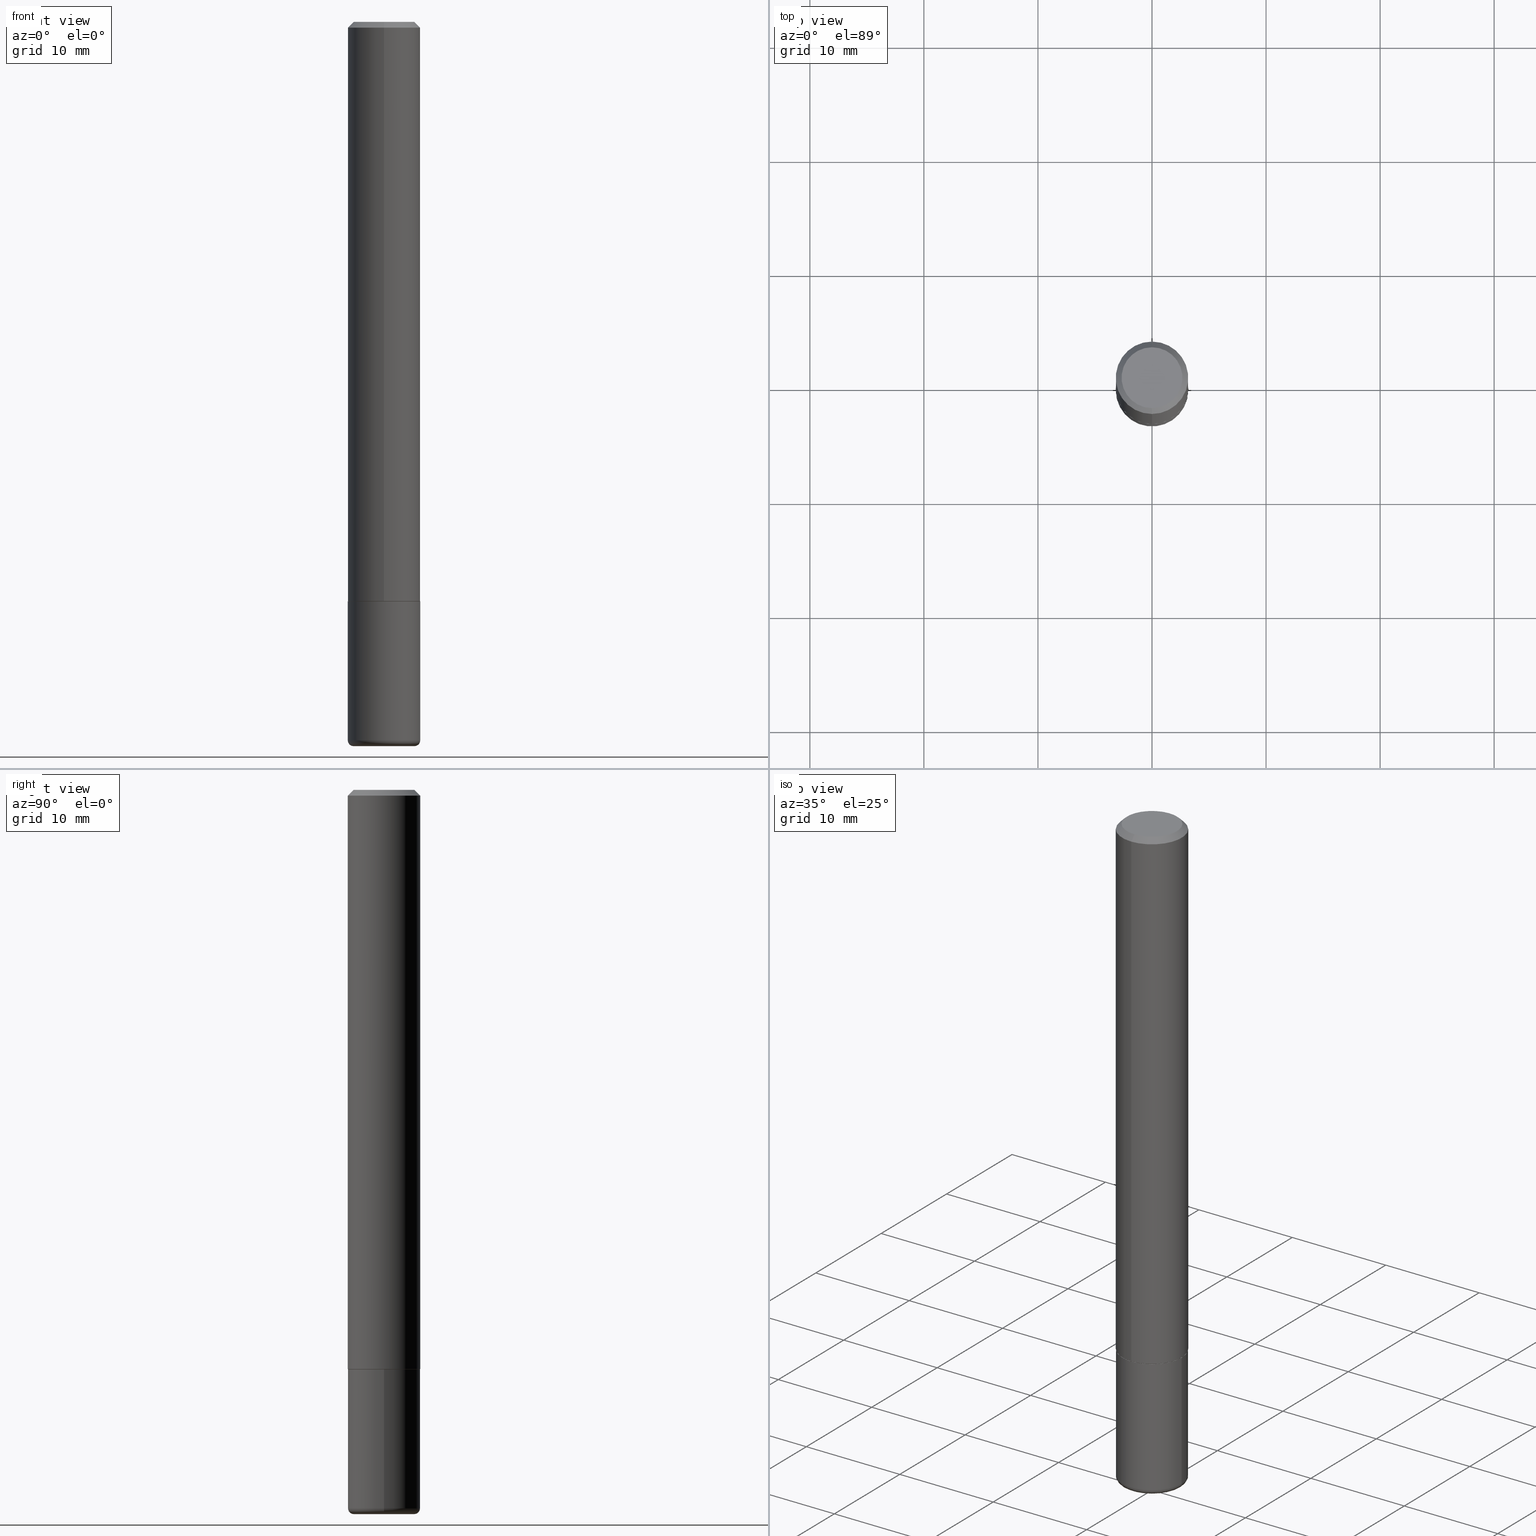
[diagram: canonical four-view strip — front | top / right | iso, engineering-drawing reading convention]
A machine part, canonical four-view strip (front | top / right | iso — engineering-drawing reading convention). The complete STEP part file that produces these views, byte-faithful:
ISO-10303-21;
HEADER;
FILE_DESCRIPTION (( 'STEP AP203' ),
    '1' );
FILE_NAME ('36570.STEP',
    '2024-03-01T16:42:06',
    ( '' ),
    ( '' ),
    'SwSTEP 2.0',
    'SolidWorks 2023',
    '' );
FILE_SCHEMA (( 'CONFIG_CONTROL_DESIGN' ));
ENDSEC;

DATA;
#1 = FACE_OUTER_BOUND ( 'NONE', #395, .T. ) ;
#2 = CARTESIAN_POINT ( 'NONE',  ( 4.867520420613714934E-29, -7.016497429105465647E-15, -2.000000000000000000 ) ) ;
#3 = AXIS2_PLACEMENT_3D ( 'NONE', #68, #321, #290 ) ;
#4 = CIRCLE ( 'NONE', #263, 0.1240000000000000685 ) ;
#5 = ADVANCED_FACE ( 'NONE', ( #211 ), #91, .T. ) ;
#6 = ORIENTED_EDGE ( 'NONE', *, *, #28, .F. ) ;
#7 = LINE ( 'NONE', #265, #300 ) ;
#8 = ORIENTED_EDGE ( 'NONE', *, *, #73, .F. ) ;
#9 = CIRCLE ( 'NONE', #38, 0.1240000000000000685 ) ;
#10 = ORIENTED_EDGE ( 'NONE', *, *, #217, .F. ) ;
#11 = ORIENTED_EDGE ( 'NONE', *, *, #261, .T. ) ;
#12 = CARTESIAN_POINT ( 'NONE',  ( -8.575622497214411495E-16, -0.1250000000000001110, -0.01999999999999963612 ) ) ;
#14 = ORIENTED_EDGE ( 'NONE', *, *, #273, .F. ) ;
#13 = PRODUCT_RELATED_PRODUCT_CATEGORY ( 'detail', '', ( #43 ) ) ;
#15 = CC_DESIGN_APPROVAL ( #136, ( #328 ) ) ;
#16 = CARTESIAN_POINT ( 'NONE',  ( 4.867520420613714934E-29, -7.016497429105465647E-15, -2.000000000000000000 ) ) ;
#17 = DIMENSIONAL_EXPONENTS ( 1.000000000000000000, 0.000000000000000000, 0.000000000000000000, 0.000000000000000000, 0.000000000000000000, 0.000000000000000000, 0.000000000000000000 ) ;
#18 = CARTESIAN_POINT ( 'NONE',  ( 0.1250000000000000278, -7.855833012397075293E-15, -2.000000000000000000 ) ) ;
#19 = CARTESIAN_POINT ( 'NONE',  ( 4.890937612370273194E-29, -6.982962677686291165E-15, -2.000000000000000000 ) ) ;
#20 = DIRECTION ( 'NONE',  ( 5.024295867788404755E-15, 0.7071067811865981989, 0.7071067811864968355 ) ) ;
#21 = CONICAL_SURFACE ( 'NONE', #97, 0.1250000000000000278, 0.7853981633974477239 ) ;
#22 = EDGE_LOOP ( 'NONE', ( #105, #93 ) ) ;
#23 = APPROVAL_DATE_TIME ( #320, #136 ) ;
#24 = VERTEX_POINT ( 'NONE', #27 ) ;
#25 = SECURITY_CLASSIFICATION_LEVEL ( 'unclassified' ) ;
#26 = PERSON_AND_ORGANIZATION ( #386, #278 ) ;
#27 = CARTESIAN_POINT ( 'NONE',  ( 8.030407079339199420E-16, 0.1049999999999997047, -8.915222872200252248E-17 ) ) ;
#28 = EDGE_CURVE ( 'NONE', #24, #61, #220, .T. ) ;
#29 = CARTESIAN_POINT ( 'NONE',  ( -0.1249999999999999861, -7.770695300630876412E-15, -2.480000000000000426 ) ) ;
#30 = DIRECTION ( 'NONE',  ( -2.445468806185136597E-29, 3.491481338843145583E-15, 1.000000000000000000 ) ) ;
#31 = CONICAL_SURFACE ( 'NONE', #59, 0.1240000000000000685, 0.7853981633975165577 ) ;
#32 = VECTOR ( 'NONE', #235, 39.37007874015748143 ) ;
#33 = DIRECTION ( 'NONE',  ( 1.000000000000000000, -6.982962677686261189E-15, 0.000000000000000000 ) ) ;
#34 = ORIENTED_EDGE ( 'NONE', *, *, #371, .T. ) ;
#35 = FACE_OUTER_BOUND ( 'NONE', #199, .T. ) ;
#36 = EDGE_CURVE ( 'NONE', #215, #254, #365, .T. ) ;
#37 = FACE_OUTER_BOUND ( 'NONE', #86, .T. ) ;
#38 = AXIS2_PLACEMENT_3D ( 'NONE', #294, #323, #72 ) ;
#39 = AXIS2_PLACEMENT_3D ( 'NONE', #98, #193, #167 ) ;
#40 = PRODUCT_DEFINITION_SHAPE ( 'NONE', 'NONE',  #328 ) ;
#41 = DIRECTION ( 'NONE',  ( -6.982962677686265922E-15, -1.000000000000000000, 4.406206441393970185E-15 ) ) ;
#42 = VERTEX_POINT ( 'NONE', #385 ) ;
#43 = PRODUCT ( '36570', '36570', '', ( #214 ) ) ;
#44 = VERTEX_POINT ( 'NONE', #344 ) ;
#45 = ORIENTED_EDGE ( 'NONE', *, *, #357, .T. ) ;
#46 = DIRECTION ( 'NONE',  ( -6.982962677686266711E-15, -1.000000000000000000, 3.491481338843145583E-15 ) ) ;
#47 = CARTESIAN_POINT ( 'NONE',  ( 4.867520420613734727E-31, -7.016497429105492666E-17, -0.02000000000000007674 ) ) ;
#48 = CC_DESIGN_DATE_AND_TIME_ASSIGNMENT ( #349, #279, ( #312 ) ) ;
#49 = ORIENTED_EDGE ( 'NONE', *, *, #177, .F. ) ;
#50 = DIRECTION ( 'NONE',  ( -2.445468806185136597E-29, 3.491481338843145583E-15, 1.000000000000000000 ) ) ;
#51 = EDGE_CURVE ( 'NONE', #42, #316, #218, .T. ) ;
#52 = AXIS2_PLACEMENT_3D ( 'NONE', #231, #106, #110 ) ;
#53 = DIRECTION ( 'NONE',  ( 2.433760210306857467E-29, -3.508248714552732824E-15, -1.000000000000000000 ) ) ;
#54 = FACE_OUTER_BOUND ( 'NONE', #22, .T. ) ;
#55 = ADVANCED_FACE ( 'NONE', ( #314 ), #221, .T. ) ;
#56 = CALENDAR_DATE ( 2024, 1, 3 ) ;
#57 = ORIENTED_EDGE ( 'NONE', *, *, #248, .F. ) ;
#58 = CARTESIAN_POINT ( 'NONE',  ( 8.881784197001510675E-16, 0.1249999999999932554, -1.999000000000000554 ) ) ;
#59 = AXIS2_PLACEMENT_3D ( 'NONE', #132, #180, #169 ) ;
#60 = CIRCLE ( 'NONE', #109, 0.1250000000000000278 ) ;
#61 = VERTEX_POINT ( 'NONE', #95 ) ;
#62 = DIRECTION ( 'NONE',  ( -2.433760210306857467E-29, 3.508248714552732429E-15, 1.000000000000000000 ) ) ;
#63 = EDGE_CURVE ( 'NONE', #64, #24, #262, .T. ) ;
#64 = VERTEX_POINT ( 'NONE', #382 ) ;
#65 = APPROVAL ( #140, 'UNSPECIFIED' ) ;
#66 = DIRECTION ( 'NONE',  ( -2.445468806185136597E-29, 3.491481338843145583E-15, 1.000000000000000000 ) ) ;
#67 = DIRECTION ( 'NONE',  ( -2.433760210306857467E-29, 3.508248714552732429E-15, 1.000000000000000000 ) ) ;
#68 = CARTESIAN_POINT ( 'NONE',  ( 4.890937612370273194E-29, -6.982962677686291165E-15, -2.000000000000000000 ) ) ;
#69 = AXIS2_PLACEMENT_3D ( 'NONE', #259, #292, #389 ) ;
#70 = VECTOR ( 'NONE', #138, 39.37007874015748143 ) ;
#71 = AXIS2_PLACEMENT_3D ( 'NONE', #19, #178, #103 ) ;
#72 = DIRECTION ( 'NONE',  ( -6.982962677686265922E-15, -1.000000000000000000, 4.406206441393970185E-15 ) ) ;
#73 = EDGE_CURVE ( 'NONE', #253, #301, #87, .T. ) ;
#74 = CARTESIAN_POINT ( 'NONE',  ( -8.658873720330487110E-16, -0.1240000000000070768, -1.999999999999999334 ) ) ;
#75 = ORIENTED_EDGE ( 'NONE', *, *, #297, .T. ) ;
#76 = EDGE_LOOP ( 'NONE', ( #379, #14 ) ) ;
#77 = CONICAL_SURFACE ( 'NONE', #311, 0.1240000000000000685, 0.7853981633975165577 ) ;
#78 = PLANE ( 'NONE',  #319 ) ;
#79 = ADVANCED_FACE ( 'NONE', ( #289 ), #418, .F. ) ;
#80 = DIRECTION ( 'NONE',  ( 1.000000000000000000, -6.982962677686261189E-15, 0.000000000000000000 ) ) ;
#81 = AXIS2_PLACEMENT_3D ( 'NONE', #404, #276, #145 ) ;
#82 = DIRECTION ( 'NONE',  ( 6.982962677686265922E-15, 1.000000000000000000, -3.517254291842738179E-15 ) ) ;
#83 =( CONVERSION_BASED_UNIT ( 'INCH', #126 ) LENGTH_UNIT ( ) NAMED_UNIT ( #17 ) );
#84 = APPROVAL_DATE_TIME ( #129, #315 ) ;
#85 = COORDINATED_UNIVERSAL_TIME_OFFSET ( 5, 0, .BEHIND. ) ;
#86 = EDGE_LOOP ( 'NONE', ( #202, #135, #318, #398 ) ) ;
#87 = CIRCLE ( 'NONE', #256, 0.1050000000000000377 ) ;
#88 =( LENGTH_UNIT ( ) NAMED_UNIT ( * ) SI_UNIT ( $, .METRE. ) );
#89 = PRODUCT_DEFINITION_FORMATION_WITH_SPECIFIED_SOURCE ( 'ANY', '', #43, .NOT_KNOWN. ) ;
#90 = APPROVAL_PERSON_ORGANIZATION ( #130, #136, #350 ) ;
#91 = PLANE ( 'NONE',  #115 ) ;
#92 = PERSON_AND_ORGANIZATION ( #386, #278 ) ;
#93 = ORIENTED_EDGE ( 'NONE', *, *, #63, .T. ) ;
#94 =( NAMED_UNIT ( * ) SI_UNIT ( $, .STERADIAN. ) SOLID_ANGLE_UNIT ( ) );
#95 = CARTESIAN_POINT ( 'NONE',  ( 8.728703347107839305E-16, 0.1249999999999999584, -0.02000000000000051736 ) ) ;
#96 = UNCERTAINTY_MEASURE_WITH_UNIT (LENGTH_MEASURE( 1.000000000000000082E-05 ), #83, 'distance_accuracy_value', 'NONE');
#97 = AXIS2_PLACEMENT_3D ( 'NONE', #296, #205, #82 ) ;
#98 = CARTESIAN_POINT ( 'NONE',  ( -0.1050000000000000377, -7.912803847782896575E-15, -2.480000000000000426 ) ) ;
#99 = ADVANCED_FACE ( 'NONE', ( #1 ), #31, .T. ) ;
#100 = PERSON_AND_ORGANIZATION ( #386, #278 ) ;
#101 = CIRCLE ( 'NONE', #117, 0.1250000000000000278 ) ;
#102 = ORIENTED_EDGE ( 'NONE', *, *, #209, .T. ) ;
#103 = DIRECTION ( 'NONE',  ( 1.000000000000000000, -6.982962677686269077E-15, 0.000000000000000000 ) ) ;
#105 = ORIENTED_EDGE ( 'NONE', *, *, #338, .T. ) ;
#104 = CC_DESIGN_PERSON_AND_ORGANIZATION_ASSIGNMENT ( #26, #219, ( #43 ) ) ;
#106 = DIRECTION ( 'NONE',  ( -2.433760210306857467E-29, 3.508248714552732824E-15, 1.000000000000000000 ) ) ;
#107 = ADVANCED_FACE ( 'NONE', ( #361 ), #77, .T. ) ;
#108 = ORIENTED_EDGE ( 'NONE', *, *, #305, .T. ) ;
#109 = AXIS2_PLACEMENT_3D ( 'NONE', #352, #157, #184 ) ;
#110 = DIRECTION ( 'NONE',  ( -6.982962677686266711E-15, -1.000000000000000000, 3.508248714552733218E-15 ) ) ;
#111 = VERTEX_POINT ( 'NONE', #74 ) ;
#112 = DIRECTION ( 'NONE',  ( -6.982962677686265922E-15, -1.000000000000000000, 4.406206441393970185E-15 ) ) ;
#113 = ADVANCED_FACE ( 'NONE', ( #37 ), #225, .T. ) ;
#114 = CARTESIAN_POINT ( 'NONE',  ( 6.064762639339139522E-29, -8.658873720331001644E-15, -2.480000000000000426 ) ) ;
#115 = AXIS2_PLACEMENT_3D ( 'NONE', #281, #159, #244 ) ;
#116 = ADVANCED_BREP_SHAPE_REPRESENTATION ( '36570', ( #226, #360, #222 ), #196 ) ;
#117 = AXIS2_PLACEMENT_3D ( 'NONE', #277, #190, #33 ) ;
#118 = DIRECTION ( 'NONE',  ( -2.433760210306857467E-29, 3.508248714552732824E-15, 1.000000000000000000 ) ) ;
#119 = CALENDAR_DATE ( 2024, 1, 3 ) ;
#120 = PLANE ( 'NONE',  #150 ) ;
#121 = EDGE_LOOP ( 'NONE', ( #191, #102, #402, #264 ) ) ;
#122 = DIRECTION ( 'NONE',  ( -6.982962677686265922E-15, -1.000000000000000000, 3.517254291842738179E-15 ) ) ;
#123 = DIRECTION ( 'NONE',  ( 1.000000000000000000, -6.982962677686266711E-15, 4.883557194083112901E-29 ) ) ;
#124 = ADVANCED_FACE ( 'NONE', ( #358 ), #189, .T. ) ;
#125 = CLOSED_SHELL ( 'NONE', ( #99, #198, #291, #194, #113, #107, #378, #284 ) ) ;
#126 = LENGTH_MEASURE_WITH_UNIT ( LENGTH_MEASURE( 0.02539999999999999897 ), #88 );
#127 = LOCAL_TIME ( 11, 42, 6.000000000000000000, #376 ) ;
#128 = DIRECTION ( 'NONE',  ( -2.433760210306857467E-29, 3.508248714552732824E-15, 1.000000000000000000 ) ) ;
#129 = DATE_AND_TIME ( #56, #381 ) ;
#130 = PERSON_AND_ORGANIZATION ( #386, #278 ) ;
#131 = DIRECTION ( 'NONE',  ( 1.000000000000000000, -6.982962677686269077E-15, 0.000000000000000000 ) ) ;
#132 = CARTESIAN_POINT ( 'NONE',  ( 4.867520420613714934E-29, -7.016497429105465647E-15, -2.000000000000000000 ) ) ;
#133 = ADVANCED_FACE ( 'NONE', ( #195 ), #229, .T. ) ;
#134 = ORIENTED_EDGE ( 'NONE', *, *, #73, .T. ) ;
#135 = ORIENTED_EDGE ( 'NONE', *, *, #217, .T. ) ;
#136 = APPROVAL ( #216, 'UNSPECIFIED' ) ;
#137 = ORIENTED_EDGE ( 'NONE', *, *, #324, .F. ) ;
#138 = DIRECTION ( 'NONE',  ( -2.445468806185136877E-29, 3.491481338843145188E-15, 1.000000000000000000 ) ) ;
#139 = ORIENTED_EDGE ( 'NONE', *, *, #305, .F. ) ;
#140 = APPROVAL_STATUS ( 'not_yet_approved' ) ;
#141 = CARTESIAN_POINT ( 'NONE',  ( 6.113672015462842613E-29, -8.728703347107864943E-15, -2.500000000000000000 ) ) ;
#142 = AXIS2_PLACEMENT_3D ( 'NONE', #245, #128, #250 ) ;
#143 = EDGE_LOOP ( 'NONE', ( #137, #8 ) ) ;
#144 = CIRCLE ( 'NONE', #415, 0.1250000000000002776 ) ;
#145 = DIRECTION ( 'NONE',  ( 1.000000000000000000, -6.982962677686267499E-15, 4.876176775795935793E-29 ) ) ;
#146 = EDGE_CURVE ( 'NONE', #111, #44, #9, .T. ) ;
#147 = CYLINDRICAL_SURFACE ( 'NONE', #52, 0.1250000000000001388 ) ;
#148 = PERSON_AND_ORGANIZATION ( #386, #278 ) ;
#149 = DATE_AND_TIME ( #119, #330 ) ;
#150 = AXIS2_PLACEMENT_3D ( 'NONE', #413, #62, #210 ) ;
#151 = ORIENTED_EDGE ( 'NONE', *, *, #261, .F. ) ;
#152 = DIRECTION ( 'NONE',  ( 1.000000000000000000, 0.000000000000000000, 0.000000000000000000 ) ) ;
#153 = APPLICATION_PROTOCOL_DEFINITION ( 'international standard', 'config_control_design', 1994, #355 ) ;
#154 = CARTESIAN_POINT ( 'NONE',  ( 4.890937612370273194E-29, -6.982962677686291165E-15, -2.000000000000000000 ) ) ;
#155 = CALENDAR_DATE ( 2024, 1, 3 ) ;
#156 = AXIS2_PLACEMENT_3D ( 'NONE', #154, #286, #131 ) ;
#157 = DIRECTION ( 'NONE',  ( -2.433760210306857467E-29, 3.508248714552732824E-15, 1.000000000000000000 ) ) ;
#158 = VECTOR ( 'NONE', #243, 39.37007874015748143 ) ;
#159 = DIRECTION ( 'NONE',  ( 2.438088387897960049E-29, -3.491481338843145188E-15, -1.000000000000000000 ) ) ;
#160 = PERSON_AND_ORGANIZATION_ROLE ( 'creator' ) ;
#161 = ORIENTED_EDGE ( 'NONE', *, *, #403, .F. ) ;
#162 = DIRECTION ( 'NONE',  ( -2.433760210306857467E-29, 3.508248714552732824E-15, 1.000000000000000000 ) ) ;
#163 = AXIS2_PLACEMENT_3D ( 'NONE', #223, #162, #356 ) ;
#164 = AXIS2_PLACEMENT_3D ( 'NONE', #114, #207, #80 ) ;
#165 = CC_DESIGN_SECURITY_CLASSIFICATION ( #312, ( #89 ) ) ;
#166 = COORDINATED_UNIVERSAL_TIME_OFFSET ( 5, 0, .BEHIND. ) ;
#167 = DIRECTION ( 'NONE',  ( -1.000000000000000000, 7.105427357601014480E-15, 0.000000000000000000 ) ) ;
#168 = ORIENTED_EDGE ( 'NONE', *, *, #403, .T. ) ;
#169 = DIRECTION ( 'NONE',  ( -6.982962677686265922E-15, -1.000000000000000000, 4.406206441393970185E-15 ) ) ;
#170 = EDGE_LOOP ( 'NONE', ( #283, #260, #232, #139 ) ) ;
#171 = CIRCLE ( 'NONE', #39, 0.01999999999999988939 ) ;
#172 = AXIS2_PLACEMENT_3D ( 'NONE', #47, #53, #175 ) ;
#173 = ORIENTED_EDGE ( 'NONE', *, *, #230, .F. ) ;
#174 = DIRECTION ( 'NONE',  ( 1.000000000000000000, -6.982962677686274599E-15, 0.000000000000000000 ) ) ;
#175 = DIRECTION ( 'NONE',  ( 6.982962677686265922E-15, 1.000000000000000000, -3.517254291842738179E-15 ) ) ;
#176 = CARTESIAN_POINT ( 'NONE',  ( -6.795396466567667121E-45, 9.795517577184144836E-31, 2.792138863060333773E-16 ) ) ;
#177 = EDGE_CURVE ( 'NONE', #253, #341, #171, .T. ) ;
#178 = DIRECTION ( 'NONE',  ( -2.445468806185136597E-29, 3.491481338843145583E-15, 1.000000000000000000 ) ) ;
#179 = CARTESIAN_POINT ( 'NONE',  ( -0.1250000000000000278, -6.932739779308521567E-15, -2.000000000000000000 ) ) ;
#180 = DIRECTION ( 'NONE',  ( -2.433760210306857467E-29, 3.508248714552732824E-15, 1.000000000000000000 ) ) ;
#181 = AXIS2_PLACEMENT_3D ( 'NONE', #414, #30, #123 ) ;
#182 = APPLICATION_PROTOCOL_DEFINITION ( 'international standard', 'config_control_design', 1994, #384 ) ;
#183 = CARTESIAN_POINT ( 'NONE',  ( -8.728703347107843249E-16, -0.1250000000000001388, 4.385310893190921453E-16 ) ) ;
#184 = DIRECTION ( 'NONE',  ( -6.982962677686265922E-15, -1.000000000000000000, 3.517254291842738179E-15 ) ) ;
#185 = ORIENTED_EDGE ( 'NONE', *, *, #230, .T. ) ;
#186 = APPROVAL_ROLE ( '' ) ;
#187 = DIRECTION ( 'NONE',  ( 1.000000000000000000, -6.982962677686274599E-15, 0.000000000000000000 ) ) ;
#188 = EDGE_CURVE ( 'NONE', #204, #254, #7, .T. ) ;
#189 = TOROIDAL_SURFACE ( 'NONE', #69, 0.1050000000000000377, 0.01999999999999988939 ) ;
#190 = DIRECTION ( 'NONE',  ( -2.445468806185136597E-29, 3.491481338843145583E-15, 1.000000000000000000 ) ) ;
#191 = ORIENTED_EDGE ( 'NONE', *, *, #409, .T. ) ;
#192 = DATE_AND_TIME ( #295, #201 ) ;
#193 = DIRECTION ( 'NONE',  ( 7.105427357601001859E-15, 1.000000000000000000, -3.491481338843145583E-15 ) ) ;
#194 = ADVANCED_FACE ( 'NONE', ( #35 ), #21, .T. ) ;
#195 = FACE_OUTER_BOUND ( 'NONE', #327, .T. ) ;
#196 =( GEOMETRIC_REPRESENTATION_CONTEXT ( 3 ) GLOBAL_UNCERTAINTY_ASSIGNED_CONTEXT ( ( #96 ) ) GLOBAL_UNIT_ASSIGNED_CONTEXT ( ( #83, #285, #94 ) ) REPRESENTATION_CONTEXT ( 'NONE', 'WORKASPACE' ) );
#197 = DIRECTION ( 'NONE',  ( -2.445468806185136597E-29, 3.491481338843145583E-15, 1.000000000000000000 ) ) ;
#198 = ADVANCED_FACE ( 'NONE', ( #302 ), #147, .T. ) ;
#199 = EDGE_LOOP ( 'NONE', ( #57, #267, #351, #333 ) ) ;
#200 = DIRECTION ( 'NONE',  ( -2.433760210306857467E-29, 3.508248714552732824E-15, 1.000000000000000000 ) ) ;
#201 = LOCAL_TIME ( 11, 42, 6.000000000000000000, #166 ) ;
#202 = ORIENTED_EDGE ( 'NONE', *, *, #357, .F. ) ;
#203 = DIRECTION ( 'NONE',  ( -2.433760210306857467E-29, 3.508248714552732824E-15, 1.000000000000000000 ) ) ;
#204 = VERTEX_POINT ( 'NONE', #307 ) ;
#205 = DIRECTION ( 'NONE',  ( 2.433760210306857467E-29, -3.508248714552732824E-15, -1.000000000000000000 ) ) ;
#206 = CARTESIAN_POINT ( 'NONE',  ( 7.332110811570558550E-16, 0.1049999999999997047, -2.287591718750192234E-16 ) ) ;
#207 = DIRECTION ( 'NONE',  ( -2.445468806185136597E-29, 3.491481338843145583E-15, 1.000000000000000000 ) ) ;
#208 = ORIENTED_EDGE ( 'NONE', *, *, #248, .T. ) ;
#209 = EDGE_CURVE ( 'NONE', #341, #215, #239, .T. ) ;
#210 = DIRECTION ( 'NONE',  ( -6.982962677686265922E-15, -1.000000000000000000, 3.508248714552732429E-15 ) ) ;
#211 = FACE_OUTER_BOUND ( 'NONE', #143, .T. ) ;
#212 = PERSON_AND_ORGANIZATION ( #386, #278 ) ;
#213 = AXIS2_PLACEMENT_3D ( 'NONE', #280, #282, #122 ) ;
#214 = MECHANICAL_CONTEXT ( 'NONE', #384, 'mechanical' ) ;
#215 = VERTEX_POINT ( 'NONE', #179 ) ;
#216 = APPROVAL_STATUS ( 'not_yet_approved' ) ;
#217 = EDGE_CURVE ( 'NONE', #370, #42, #144, .T. ) ;
#218 = LINE ( 'NONE', #183, #406 ) ;
#219 = PERSON_AND_ORGANIZATION_ROLE ( 'design_owner' ) ;
#220 = LINE ( 'NONE', #310, #392 ) ;
#221 = TOROIDAL_SURFACE ( 'NONE', #181, 0.1050000000000000377, 0.01999999999999988939 ) ;
#222 = AXIS2_PLACEMENT_3D ( 'NONE', #309, #249, #152 ) ;
#223 = CARTESIAN_POINT ( 'NONE',  ( 0.000000000000000000, 0.000000000000000000, 0.000000000000000000 ) ) ;
#224 = ADVANCED_FACE ( 'NONE', ( #275 ), #366, .T. ) ;
#225 = CYLINDRICAL_SURFACE ( 'NONE', #163, 0.1250000000000001388 ) ;
#226 = MANIFOLD_SOLID_BREP ( 'Body-Move/Copy2[1]', #336 ) ;
#227 = DIRECTION ( 'NONE',  ( -2.433760210306857467E-29, 3.508248714552732824E-15, 1.000000000000000000 ) ) ;
#228 = CIRCLE ( 'NONE', #246, 0.01999999999999988939 ) ;
#229 = CYLINDRICAL_SURFACE ( 'NONE', #401, 0.1250000000000000278 ) ;
#230 = EDGE_CURVE ( 'NONE', #42, #370, #293, .T. ) ;
#231 = CARTESIAN_POINT ( 'NONE',  ( 0.000000000000000000, 0.000000000000000000, 0.000000000000000000 ) ) ;
#232 = ORIENTED_EDGE ( 'NONE', *, *, #409, .F. ) ;
#233 = CIRCLE ( 'NONE', #287, 0.1050000000000000377 ) ;
#234 = EDGE_LOOP ( 'NONE', ( #49, #134, #108, #151 ) ) ;
#235 = DIRECTION ( 'NONE',  ( -4.851104656540961119E-15, -0.7071067811865495711, -0.7071067811865454633 ) ) ;
#236 = CC_DESIGN_PERSON_AND_ORGANIZATION_ASSIGNMENT ( #148, #374, ( #89 ) ) ;
#237 = EDGE_LOOP ( 'NONE', ( #185, #45, #161, #266 ) ) ;
#238 = CARTESIAN_POINT ( 'NONE',  ( 4.865086660403408100E-29, -7.012989180390911878E-15, -1.998999999999999888 ) ) ;
#239 = LINE ( 'NONE', #369, #70 ) ;
#240 = APPROVAL_PERSON_ORGANIZATION ( #100, #65, #269 ) ;
#241 = DESIGN_CONTEXT ( 'detailed design', #355, 'design' ) ;
#242 = APPROVAL_DATE_TIME ( #149, #65 ) ;
#243 = DIRECTION ( 'NONE',  ( -4.937700262164884886E-15, -0.7071067811865933139, 0.7071067811865017205 ) ) ;
#244 = DIRECTION ( 'NONE',  ( -1.000000000000000000, 6.982962677686265922E-15, -4.876176775795935793E-29 ) ) ;
#245 = CARTESIAN_POINT ( 'NONE',  ( -6.795396466567667121E-45, 9.795517577184144836E-31, 2.792138863060333773E-16 ) ) ;
#246 = AXIS2_PLACEMENT_3D ( 'NONE', #304, #46, #174 ) ;
#248 = EDGE_CURVE ( 'NONE', #64, #316, #334, .T. ) ;
#247 = PERSON_AND_ORGANIZATION_ROLE ( 'classification_officer' ) ;
#249 = DIRECTION ( 'NONE',  ( 0.000000000000000000, 0.000000000000000000, 1.000000000000000000 ) ) ;
#250 = DIRECTION ( 'NONE',  ( -6.982962677686265922E-15, -1.000000000000000000, 3.508248714552732035E-15 ) ) ;
#251 = SHAPE_DEFINITION_REPRESENTATION ( #40, #116 ) ;
#252 = LINE ( 'NONE', #342, #354 ) ;
#253 = VERTEX_POINT ( 'NONE', #332 ) ;
#254 = VERTEX_POINT ( 'NONE', #18 ) ;
#255 = CC_DESIGN_PERSON_AND_ORGANIZATION_ASSIGNMENT ( #325, #160, ( #328 ) ) ;
#256 = AXIS2_PLACEMENT_3D ( 'NONE', #353, #66, #187 ) ;
#257 = DATE_TIME_ROLE ( 'creation_date' ) ;
#258 = CC_DESIGN_APPROVAL ( #65, ( #89 ) ) ;
#259 = CARTESIAN_POINT ( 'NONE',  ( 6.064762639339139522E-29, -8.658873720331001644E-15, -2.480000000000000426 ) ) ;
#260 = ORIENTED_EDGE ( 'NONE', *, *, #177, .T. ) ;
#261 = EDGE_CURVE ( 'NONE', #341, #204, #393, .T. ) ;
#262 = CIRCLE ( 'NONE', #142, 0.1049999999999997047 ) ;
#263 = AXIS2_PLACEMENT_3D ( 'NONE', #16, #200, #112 ) ;
#264 = ORIENTED_EDGE ( 'NONE', *, *, #188, .F. ) ;
#265 = CARTESIAN_POINT ( 'NONE',  ( 0.1250000000000000278, -8.728703347107836346E-16, 6.095220969744921142E-30 ) ) ;
#266 = ORIENTED_EDGE ( 'NONE', *, *, #51, .F. ) ;
#267 = ORIENTED_EDGE ( 'NONE', *, *, #338, .F. ) ;
#268 = CC_DESIGN_DATE_AND_TIME_ASSIGNMENT ( #192, #257, ( #328 ) ) ;
#269 = APPROVAL_ROLE ( '' ) ;
#270 = DIRECTION ( 'NONE',  ( 1.000000000000000000, -6.982962677686274599E-15, 0.000000000000000000 ) ) ;
#271 = LOCAL_TIME ( 11, 42, 6.000000000000000000, #85 ) ;
#272 = AXIS2_PLACEMENT_3D ( 'NONE', #176, #118, #408 ) ;
#273 = EDGE_CURVE ( 'NONE', #44, #111, #4, .T. ) ;
#274 = ORIENTED_EDGE ( 'NONE', *, *, #36, .T. ) ;
#275 = FACE_OUTER_BOUND ( 'NONE', #121, .T. ) ;
#276 = DIRECTION ( 'NONE',  ( -2.445468806185136597E-29, 3.491481338843145583E-15, 1.000000000000000000 ) ) ;
#277 = CARTESIAN_POINT ( 'NONE',  ( 6.064762639339139522E-29, -8.658873720331001644E-15, -2.480000000000000426 ) ) ;
#278 = ORGANIZATION ( 'UNSPECIFIED', 'UNSPECIFIED', '' ) ;
#279 = DATE_TIME_ROLE ( 'classification_date' ) ;
#280 = CARTESIAN_POINT ( 'NONE',  ( 4.867520420613734727E-31, -7.016497429105492666E-17, -0.02000000000000007674 ) ) ;
#281 = CARTESIAN_POINT ( 'NONE',  ( 6.113672015462842613E-29, -8.728703347107864943E-15, -2.500000000000000000 ) ) ;
#282 = DIRECTION ( 'NONE',  ( -2.433760210306857467E-29, 3.508248714552732824E-15, 1.000000000000000000 ) ) ;
#283 = ORIENTED_EDGE ( 'NONE', *, *, #324, .T. ) ;
#284 = ADVANCED_FACE ( 'NONE', ( #54 ), #78, .F. ) ;
#285 =( NAMED_UNIT ( * ) PLANE_ANGLE_UNIT ( ) SI_UNIT ( $, .RADIAN. ) );
#286 = DIRECTION ( 'NONE',  ( -2.445468806185136597E-29, 3.491481338843145583E-15, 1.000000000000000000 ) ) ;
#287 = AXIS2_PLACEMENT_3D ( 'NONE', #141, #50, #270 ) ;
#288 = APPROVAL_STATUS ( 'not_yet_approved' ) ;
#289 = FACE_OUTER_BOUND ( 'NONE', #387, .T. ) ;
#290 = DIRECTION ( 'NONE',  ( -1.000000000000000000, 6.982962677686265922E-15, -4.876176775795935793E-29 ) ) ;
#291 = ADVANCED_FACE ( 'NONE', ( #396 ), #373, .T. ) ;
#292 = DIRECTION ( 'NONE',  ( -2.445468806185136597E-29, 3.491481338843145583E-15, 1.000000000000000000 ) ) ;
#293 = CIRCLE ( 'NONE', #367, 0.1250000000000002776 ) ;
#294 = CARTESIAN_POINT ( 'NONE',  ( 4.867520420613714934E-29, -7.016497429105465647E-15, -2.000000000000000000 ) ) ;
#295 = CALENDAR_DATE ( 2024, 1, 3 ) ;
#296 = CARTESIAN_POINT ( 'NONE',  ( 4.867520420613734727E-31, -7.016497429105492666E-17, -0.02000000000000007674 ) ) ;
#297 = EDGE_CURVE ( 'NONE', #254, #215, #337, .T. ) ;
#298 = CARTESIAN_POINT ( 'NONE',  ( 0.000000000000000000, 0.000000000000000000, 0.000000000000000000 ) ) ;
#299 = ORIENTED_EDGE ( 'NONE', *, *, #273, .T. ) ;
#300 = VECTOR ( 'NONE', #322, 39.37007874015748143 ) ;
#301 = VERTEX_POINT ( 'NONE', #329 ) ;
#302 = FACE_OUTER_BOUND ( 'NONE', #237, .T. ) ;
#303 = ORIENTED_EDGE ( 'NONE', *, *, #146, .T. ) ;
#304 = CARTESIAN_POINT ( 'NONE',  ( 0.1050000000000000377, -9.392084801488059965E-15, -2.480000000000000426 ) ) ;
#305 = EDGE_CURVE ( 'NONE', #301, #204, #228, .T. ) ;
#306 = ORIENTED_EDGE ( 'NONE', *, *, #397, .F. ) ;
#307 = CARTESIAN_POINT ( 'NONE',  ( 0.1249999999999999861, -9.531744055041784983E-15, -2.480000000000000426 ) ) ;
#308 = DIRECTION ( 'NONE',  ( 2.433760210306857467E-29, -3.508248714552732429E-15, -1.000000000000000000 ) ) ;
#309 = CARTESIAN_POINT ( 'NONE',  ( 0.000000000000000000, 0.000000000000000000, 0.000000000000000000 ) ) ;
#310 = CARTESIAN_POINT ( 'NONE',  ( 8.728703347107839305E-16, 0.1249999999999999584, -0.02000000000000051736 ) ) ;
#311 = AXIS2_PLACEMENT_3D ( 'NONE', #2, #227, #41 ) ;
#312 = SECURITY_CLASSIFICATION ( '', '', #25 ) ;
#313 = CALENDAR_DATE ( 2024, 1, 3 ) ;
#314 = FACE_OUTER_BOUND ( 'NONE', #234, .T. ) ;
#315 = APPROVAL ( #288, 'UNSPECIFIED' ) ;
#316 = VERTEX_POINT ( 'NONE', #12 ) ;
#317 = PERSON_AND_ORGANIZATION ( #386, #278 ) ;
#318 = ORIENTED_EDGE ( 'NONE', *, *, #51, .T. ) ;
#319 = AXIS2_PLACEMENT_3D ( 'NONE', #206, #308, #335 ) ;
#320 = DATE_AND_TIME ( #313, #271 ) ;
#321 = DIRECTION ( 'NONE',  ( 2.438088387897960049E-29, -3.491481338843145188E-15, -1.000000000000000000 ) ) ;
#322 = DIRECTION ( 'NONE',  ( -2.445468806185136877E-29, 3.491481338843145188E-15, 1.000000000000000000 ) ) ;
#323 = DIRECTION ( 'NONE',  ( -2.433760210306857467E-29, 3.508248714552732824E-15, 1.000000000000000000 ) ) ;
#324 = EDGE_CURVE ( 'NONE', #301, #253, #233, .T. ) ;
#325 = PERSON_AND_ORGANIZATION ( #386, #278 ) ;
#326 = DIRECTION ( 'NONE',  ( 1.000000000000000000, -6.982962677686267499E-15, 4.876176775795935793E-29 ) ) ;
#327 = EDGE_LOOP ( 'NONE', ( #412, #11, #362, #400 ) ) ;
#328 = PRODUCT_DEFINITION ( 'UNKNOWN', '', #89, #241 ) ;
#329 = CARTESIAN_POINT ( 'NONE',  ( 0.1050000000000000377, -9.461914428264923263E-15, -2.500000000000000000 ) ) ;
#330 = LOCAL_TIME ( 11, 42, 6.000000000000000000, #340 ) ;
#331 = ORIENTED_EDGE ( 'NONE', *, *, #63, .F. ) ;
#332 = CARTESIAN_POINT ( 'NONE',  ( -0.1050000000000000377, -7.876664387595318143E-15, -2.500000000000000000 ) ) ;
#333 = ORIENTED_EDGE ( 'NONE', *, *, #346, .T. ) ;
#334 = LINE ( 'NONE', #399, #32 ) ;
#335 = DIRECTION ( 'NONE',  ( 6.982962677686265922E-15, 1.000000000000000000, -3.508248714552732429E-15 ) ) ;
#336 = CLOSED_SHELL ( 'NONE', ( #224, #124, #79, #133, #55, #5 ) ) ;
#337 = CIRCLE ( 'NONE', #71, 0.1250000000000000278 ) ;
#338 = EDGE_CURVE ( 'NONE', #24, #64, #380, .T. ) ;
#339 = DIRECTION ( 'NONE',  ( -6.982962677686265922E-15, -1.000000000000000000, 4.370956789862811683E-15 ) ) ;
#340 = COORDINATED_UNIVERSAL_TIME_OFFSET ( 5, 0, .BEHIND. ) ;
#341 = VERTEX_POINT ( 'NONE', #29 ) ;
#342 = CARTESIAN_POINT ( 'NONE',  ( 8.881784197001262184E-16, 0.1250000000000001388, -4.385310893190921453E-16 ) ) ;
#343 = CC_DESIGN_PERSON_AND_ORGANIZATION_ASSIGNMENT ( #317, #345, ( #89 ) ) ;
#344 = CARTESIAN_POINT ( 'NONE',  ( 8.846257060213744265E-16, 0.1239999999999930463, -2.000000000000000444 ) ) ;
#345 = PERSON_AND_ORGANIZATION_ROLE ( 'creator' ) ;
#346 = EDGE_CURVE ( 'NONE', #61, #316, #60, .T. ) ;
#347 = CARTESIAN_POINT ( 'NONE',  ( 8.810729923425732322E-16, 0.1239999999999930463, -2.000000000000000444 ) ) ;
#348 = EDGE_LOOP ( 'NONE', ( #391, #299, #368, #10 ) ) ;
#349 = DATE_AND_TIME ( #155, #127 ) ;
#350 = APPROVAL_ROLE ( '' ) ;
#351 = ORIENTED_EDGE ( 'NONE', *, *, #28, .T. ) ;
#352 = CARTESIAN_POINT ( 'NONE',  ( 4.867520420613734727E-31, -7.016497429105492666E-17, -0.02000000000000007674 ) ) ;
#353 = CARTESIAN_POINT ( 'NONE',  ( 6.113672015462842613E-29, -8.728703347107864943E-15, -2.500000000000000000 ) ) ;
#354 = VECTOR ( 'NONE', #67, 39.37007874015748143 ) ;
#355 = APPLICATION_CONTEXT ( 'configuration controlled 3d designs of mechanical parts and assemblies' ) ;
#356 = DIRECTION ( 'NONE',  ( -6.982962677686266711E-15, -1.000000000000000000, 3.508248714552733218E-15 ) ) ;
#357 = EDGE_CURVE ( 'NONE', #370, #61, #252, .T. ) ;
#358 = FACE_OUTER_BOUND ( 'NONE', #170, .T. ) ;
#359 = CIRCLE ( 'NONE', #213, 0.1250000000000000278 ) ;
#360 = MANIFOLD_SOLID_BREP ( 'Body-Move/Copy2[2]', #125 ) ;
#361 = FACE_OUTER_BOUND ( 'NONE', #348, .T. ) ;
#362 = ORIENTED_EDGE ( 'NONE', *, *, #188, .T. ) ;
#363 = DIRECTION ( 'NONE',  ( -2.433760210306857467E-29, 3.508248714552732824E-15, 1.000000000000000000 ) ) ;
#364 = EDGE_LOOP ( 'NONE', ( #331, #208, #168, #6 ) ) ;
#365 = CIRCLE ( 'NONE', #156, 0.1250000000000000278 ) ;
#366 = CYLINDRICAL_SURFACE ( 'NONE', #81, 0.1250000000000000278 ) ;
#367 = AXIS2_PLACEMENT_3D ( 'NONE', #238, #363, #405 ) ;
#368 = ORIENTED_EDGE ( 'NONE', *, *, #397, .T. ) ;
#369 = CARTESIAN_POINT ( 'NONE',  ( -0.1250000000000000278, 8.881784197001254296E-16, -6.148668862818634329E-30 ) ) ;
#370 = VERTEX_POINT ( 'NONE', #58 ) ;
#371 = EDGE_CURVE ( 'NONE', #44, #370, #417, .T. ) ;
#372 = CARTESIAN_POINT ( 'NONE',  ( 4.865086660403408100E-29, -7.012989180390911878E-15, -1.998999999999999888 ) ) ;
#373 = CONICAL_SURFACE ( 'NONE', #172, 0.1250000000000000278, 0.7853981633974477239 ) ;
#374 = PERSON_AND_ORGANIZATION_ROLE ( 'design_supplier' ) ;
#375 = LINE ( 'NONE', #383, #158 ) ;
#376 = COORDINATED_UNIVERSAL_TIME_OFFSET ( 5, 0, .BEHIND. ) ;
#377 = DIRECTION ( 'NONE',  ( 4.937700262164544887E-15, 0.7071067811865446862, -0.7071067811865503483 ) ) ;
#378 = ADVANCED_FACE ( 'NONE', ( #411 ), #120, .F. ) ;
#379 = ORIENTED_EDGE ( 'NONE', *, *, #146, .F. ) ;
#380 = CIRCLE ( 'NONE', #272, 0.1049999999999997047 ) ;
#381 = LOCAL_TIME ( 11, 42, 6.000000000000000000, #416 ) ;
#382 = CARTESIAN_POINT ( 'NONE',  ( -7.889572697437248320E-16, -0.1049999999999997047, 6.475800013340691661E-16 ) ) ;
#383 = CARTESIAN_POINT ( 'NONE',  ( -8.658873720330487110E-16, -0.1240000000000070768, -1.999999999999999334 ) ) ;
#384 = APPLICATION_CONTEXT ( 'configuration controlled 3d designs of mechanical parts and assemblies' ) ;
#385 = CARTESIAN_POINT ( 'NONE',  ( -8.728703347107365002E-16, -0.1250000000000072997, -1.998999999999999444 ) ) ;
#386 = PERSON ( 'UNSPECIFIED', 'UNSPECIFIED', 'UNSPECIFIED', ('UNSPECIFIED'), ('UNSPECIFIED'), ('UNSPECIFIED') ) ;
#387 = EDGE_LOOP ( 'NONE', ( #75, #274 ) ) ;
#388 = VECTOR ( 'NONE', #20, 39.37007874015748143 ) ;
#389 = DIRECTION ( 'NONE',  ( 1.000000000000000000, -6.982962677686266711E-15, 4.883557194083112901E-29 ) ) ;
#390 = CC_DESIGN_PERSON_AND_ORGANIZATION_ASSIGNMENT ( #212, #247, ( #312 ) ) ;
#391 = ORIENTED_EDGE ( 'NONE', *, *, #371, .F. ) ;
#392 = VECTOR ( 'NONE', #377, 39.37007874015748143 ) ;
#393 = CIRCLE ( 'NONE', #164, 0.1250000000000000278 ) ;
#394 = CC_DESIGN_APPROVAL ( #315, ( #312 ) ) ;
#395 = EDGE_LOOP ( 'NONE', ( #303, #34, #173, #306 ) ) ;
#396 = FACE_OUTER_BOUND ( 'NONE', #364, .T. ) ;
#397 = EDGE_CURVE ( 'NONE', #111, #42, #375, .T. ) ;
#398 = ORIENTED_EDGE ( 'NONE', *, *, #346, .F. ) ;
#399 = CARTESIAN_POINT ( 'NONE',  ( -8.575622497214411495E-16, -0.1250000000000001110, -0.01999999999999963612 ) ) ;
#400 = ORIENTED_EDGE ( 'NONE', *, *, #36, .F. ) ;
#401 = AXIS2_PLACEMENT_3D ( 'NONE', #298, #197, #326 ) ;
#402 = ORIENTED_EDGE ( 'NONE', *, *, #297, .F. ) ;
#403 = EDGE_CURVE ( 'NONE', #316, #61, #359, .T. ) ;
#404 = CARTESIAN_POINT ( 'NONE',  ( 0.000000000000000000, 0.000000000000000000, 0.000000000000000000 ) ) ;
#405 = DIRECTION ( 'NONE',  ( -6.982962677686265922E-15, -1.000000000000000000, 4.370956789862811683E-15 ) ) ;
#406 = VECTOR ( 'NONE', #410, 39.37007874015748143 ) ;
#407 = APPROVAL_PERSON_ORGANIZATION ( #92, #315, #186 ) ;
#408 = DIRECTION ( 'NONE',  ( -6.982962677686265922E-15, -1.000000000000000000, 3.508248714552732035E-15 ) ) ;
#409 = EDGE_CURVE ( 'NONE', #204, #341, #101, .T. ) ;
#410 = DIRECTION ( 'NONE',  ( -2.433760210306857467E-29, 3.508248714552732429E-15, 1.000000000000000000 ) ) ;
#411 = FACE_OUTER_BOUND ( 'NONE', #76, .T. ) ;
#412 = ORIENTED_EDGE ( 'NONE', *, *, #209, .F. ) ;
#413 = CARTESIAN_POINT ( 'NONE',  ( 4.867520420613714934E-29, -7.016497429105465647E-15, -2.000000000000000000 ) ) ;
#414 = CARTESIAN_POINT ( 'NONE',  ( 6.064762639339139522E-29, -8.658873720331001644E-15, -2.480000000000000426 ) ) ;
#415 = AXIS2_PLACEMENT_3D ( 'NONE', #372, #203, #339 ) ;
#416 = COORDINATED_UNIVERSAL_TIME_OFFSET ( 5, 0, .BEHIND. ) ;
#417 = LINE ( 'NONE', #347, #388 ) ;
#418 = PLANE ( 'NONE',  #3 ) ;
ENDSEC;
END-ISO-10303-21;
